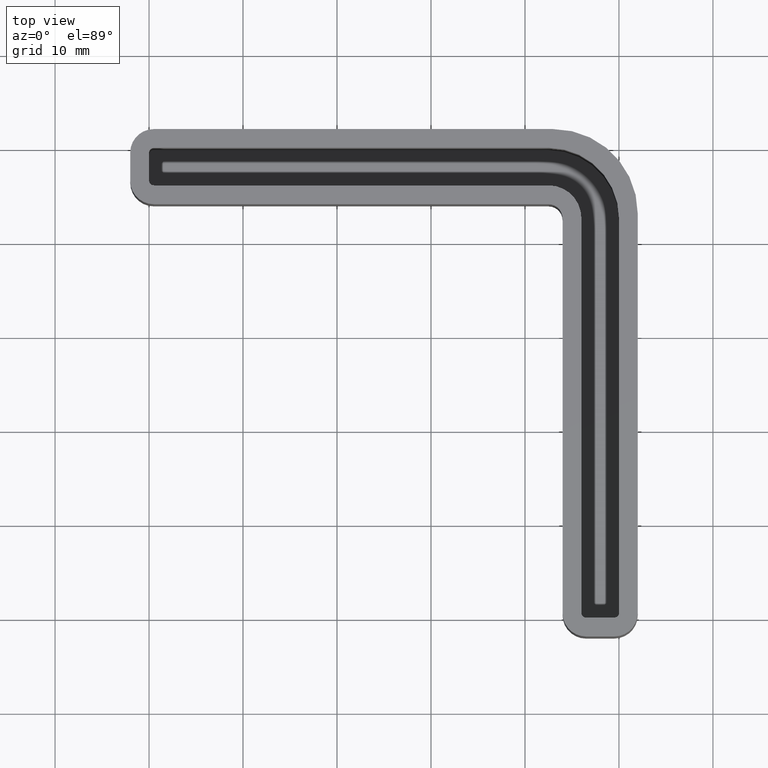
[diagram: clean part render]
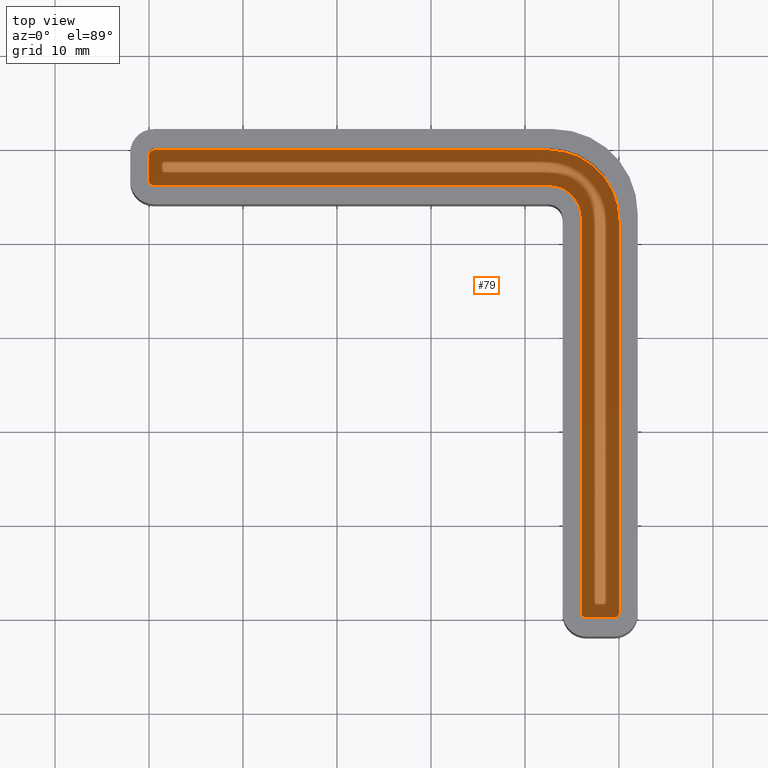
[diagram: same view with one face highlighted and labeled with its STEP entity id]
A machine part, top view. The second image highlights one B-rep face of the part: STEP entity #79.
In plain terms, the highlighted planar face has unit normal (0, 0, 1).
Its self-contained STEP definition (entity closure, byte-faithful):
#79 = ADVANCED_FACE( '', ( #124 ), #125, .T. );
#124 = FACE_OUTER_BOUND( '', #203, .T. );
#125 = PLANE( '', #204 );
#203 = EDGE_LOOP( '', ( #409, #410, #411, #412, #413, #414, #415, #416, #417, #418, #419, #420 ) );
#204 = AXIS2_PLACEMENT_3D( '', #421, #422, #423 );
#409 = ORIENTED_EDGE( '', *, *, #686, .T. );
#410 = ORIENTED_EDGE( '', *, *, #689, .T. );
#411 = ORIENTED_EDGE( '', *, *, #690, .T. );
#412 = ORIENTED_EDGE( '', *, *, #691, .T. );
#413 = ORIENTED_EDGE( '', *, *, #692, .T. );
#414 = ORIENTED_EDGE( '', *, *, #693, .T. );
#415 = ORIENTED_EDGE( '', *, *, #694, .T. );
#416 = ORIENTED_EDGE( '', *, *, #695, .T. );
#417 = ORIENTED_EDGE( '', *, *, #696, .T. );
#418 = ORIENTED_EDGE( '', *, *, #697, .T. );
#419 = ORIENTED_EDGE( '', *, *, #698, .T. );
#420 = ORIENTED_EDGE( '', *, *, #699, .T. );
#421 = CARTESIAN_POINT( '', ( -0.500000000000006, -49.5000000000000, -13.0000000000000 ) );
#422 = DIRECTION( '', ( 0.000000000000000, 0.000000000000000, 1.00000000000000 ) );
#423 = DIRECTION( '', ( 1.00000000000000, -1.83690953073357E-016, 0.000000000000000 ) );
#686 = EDGE_CURVE( '', #809, #807, #810, .T. );
#689 = EDGE_CURVE( '', #807, #812, #814, .T. );
#690 = EDGE_CURVE( '', #812, #815, #816, .T. );
#691 = EDGE_CURVE( '', #815, #817, #818, .T. );
#692 = EDGE_CURVE( '', #817, #819, #820, .T. );
#693 = EDGE_CURVE( '', #819, #821, #822, .T. );
#694 = EDGE_CURVE( '', #821, #823, #824, .T. );
#695 = EDGE_CURVE( '', #823, #825, #826, .T. );
#696 = EDGE_CURVE( '', #825, #827, #828, .T. );
#697 = EDGE_CURVE( '', #827, #829, #830, .T. );
#698 = EDGE_CURVE( '', #829, #831, #832, .T. );
#699 = EDGE_CURVE( '', #831, #809, #833, .T. );
#807 = VERTEX_POINT( '', #977 );
#809 = VERTEX_POINT( '', #980 );
#810 = CIRCLE( '', #981, 0.500000000000000 );
#812 = VERTEX_POINT( '', #984 );
#814 = LINE( '', #987, #988 );
#815 = VERTEX_POINT( '', #989 );
#816 = CIRCLE( '', #990, 7.50000000000000 );
#817 = VERTEX_POINT( '', #991 );
#818 = LINE( '', #992, #993 );
#819 = VERTEX_POINT( '', #994 );
#820 = CIRCLE( '', #995, 0.500000000000000 );
#821 = VERTEX_POINT( '', #996 );
#822 = LINE( '', #997, #998 );
#823 = VERTEX_POINT( '', #999 );
#824 = CIRCLE( '', #1000, 0.500000000000000 );
#825 = VERTEX_POINT( '', #1001 );
#826 = LINE( '', #1002, #1003 );
#827 = VERTEX_POINT( '', #1004 );
#828 = CIRCLE( '', #1005, 3.50000000000000 );
#829 = VERTEX_POINT( '', #1006 );
#830 = LINE( '', #1007, #1008 );
#831 = VERTEX_POINT( '', #1009 );
#832 = CIRCLE( '', #1010, 0.500000000000000 );
#833 = LINE( '', #1011, #1012 );
#977 = CARTESIAN_POINT( '', ( -9.09270217713115E-015, -49.5000000000000, -13.0000000000000 ) );
#980 = CARTESIAN_POINT( '', ( -0.500000000000010, -50.0000000000000, -13.0000000000000 ) );
#981 = AXIS2_PLACEMENT_3D( '', #1174, #1175, #1176 );
#984 = CARTESIAN_POINT( '', ( -1.37768214805017E-015, -7.50000000000000, -13.0000000000000 ) );
#987 = CARTESIAN_POINT( '', ( -9.09270217713115E-015, -49.5000000000000, -13.0000000000000 ) );
#988 = VECTOR( '', #1179, 1000.00000000000 );
#989 = CARTESIAN_POINT( '', ( -7.50000000000000, 9.18454765366783E-016, -13.0000000000000 ) );
#990 = AXIS2_PLACEMENT_3D( '', #1180, #1181, #1182 );
#991 = CARTESIAN_POINT( '', ( -49.5000000000000, 6.06180145142076E-015, -13.0000000000000 ) );
#992 = CARTESIAN_POINT( '', ( -7.50000000000001, 9.18454765366784E-016, -13.0000000000000 ) );
#993 = VECTOR( '', #1183, 1000.00000000000 );
#994 = CARTESIAN_POINT( '', ( -50.0000000000000, -0.499999999999994, -13.0000000000000 ) );
#995 = AXIS2_PLACEMENT_3D( '', #1184, #1185, #1186 );
#996 = CARTESIAN_POINT( '', ( -50.0000000000000, -3.49999999999998, -13.0000000000000 ) );
#997 = CARTESIAN_POINT( '', ( -50.0000000000000, -0.499999999999981, -13.0000000000000 ) );
#998 = VECTOR( '', #1187, 1000.00000000000 );
#999 = CARTESIAN_POINT( '', ( -49.5000000000000, -4.00000000000000, -13.0000000000000 ) );
#1000 = AXIS2_PLACEMENT_3D( '', #1188, #1189, #1190 );
#1001 = CARTESIAN_POINT( '', ( -7.50000000000001, -4.00000000000000, -13.0000000000000 ) );
#1002 = CARTESIAN_POINT( '', ( -49.5000000000000, -4.00000000000000, -13.0000000000000 ) );
#1003 = VECTOR( '', #1191, 1000.00000000000 );
#1004 = CARTESIAN_POINT( '', ( -4.00000000000001, -7.50000000000000, -13.0000000000000 ) );
#1005 = AXIS2_PLACEMENT_3D( '', #1192, #1193, #1194 );
#1006 = CARTESIAN_POINT( '', ( -4.00000000000001, -49.5000000000000, -13.0000000000000 ) );
#1007 = CARTESIAN_POINT( '', ( -4.00000000000000, -7.49999999999999, -13.0000000000000 ) );
#1008 = VECTOR( '', #1195, 1000.00000000000 );
#1009 = CARTESIAN_POINT( '', ( -3.50000000000001, -50.0000000000000, -13.0000000000000 ) );
#1010 = AXIS2_PLACEMENT_3D( '', #1196, #1197, #1198 );
#1011 = CARTESIAN_POINT( '', ( -3.50000000000001, -50.0000000000000, -13.0000000000000 ) );
#1012 = VECTOR( '', #1199, 1000.00000000000 );
#1174 = CARTESIAN_POINT( '', ( -0.500000000000006, -49.5000000000000, -13.0000000000000 ) );
#1175 = DIRECTION( '', ( 0.000000000000000, 0.000000000000000, 1.00000000000000 ) );
#1176 = DIRECTION( '', ( -4.00531387570457E-016, -1.00000000000000, 0.000000000000000 ) );
#1179 = DIRECTION( '', ( 1.83690953073357E-016, 1.00000000000000, 0.000000000000000 ) );
#1180 = CARTESIAN_POINT( '', ( -7.50000000000000, -7.50000000000000, -13.0000000000000 ) );
#1181 = DIRECTION( '', ( 0.000000000000000, 0.000000000000000, 1.00000000000000 ) );
#1182 = DIRECTION( '', ( 1.00000000000000, -1.83690953073357E-016, 0.000000000000000 ) );
#1183 = DIRECTION( '', ( -1.00000000000000, 1.22460635382238E-016, 0.000000000000000 ) );
#1184 = CARTESIAN_POINT( '', ( -49.5000000000000, -0.499999999999994, -13.0000000000000 ) );
#1185 = DIRECTION( '', ( 0.000000000000000, 0.000000000000000, 1.00000000000000 ) );
#1186 = DIRECTION( '', ( 1.83690953073357E-016, 1.00000000000000, 0.000000000000000 ) );
#1187 = DIRECTION( '', ( -1.91849574421310E-016, -1.00000000000000, 0.000000000000000 ) );
#1188 = CARTESIAN_POINT( '', ( -49.5000000000000, -3.50000000000000, -13.0000000000000 ) );
#1189 = DIRECTION( '', ( 0.000000000000000, 0.000000000000000, 1.00000000000000 ) );
#1190 = DIRECTION( '', ( -1.00000000000000, 1.83690953073357E-016, 0.000000000000000 ) );
#1191 = DIRECTION( '', ( 1.00000000000000, -1.22460635382238E-016, 0.000000000000000 ) );
#1192 = CARTESIAN_POINT( '', ( -7.50000000000000, -7.50000000000000, -13.0000000000000 ) );
#1193 = DIRECTION( '', ( 0.000000000000000, 0.000000000000000, -1.00000000000000 ) );
#1194 = DIRECTION( '', ( -6.41266863519019E-017, 1.00000000000000, 0.000000000000000 ) );
#1195 = DIRECTION( '', ( -1.83175957041426E-016, -1.00000000000000, 0.000000000000000 ) );
#1196 = CARTESIAN_POINT( '', ( -3.50000000000001, -49.5000000000000, -13.0000000000000 ) );
#1197 = DIRECTION( '', ( 0.000000000000000, 0.000000000000000, 1.00000000000000 ) );
#1198 = DIRECTION( '', ( -1.00000000000000, 1.83690953073357E-016, 0.000000000000000 ) );
#1199 = DIRECTION( '', ( 1.00000000000000, -1.22460635382238E-016, 0.000000000000000 ) );